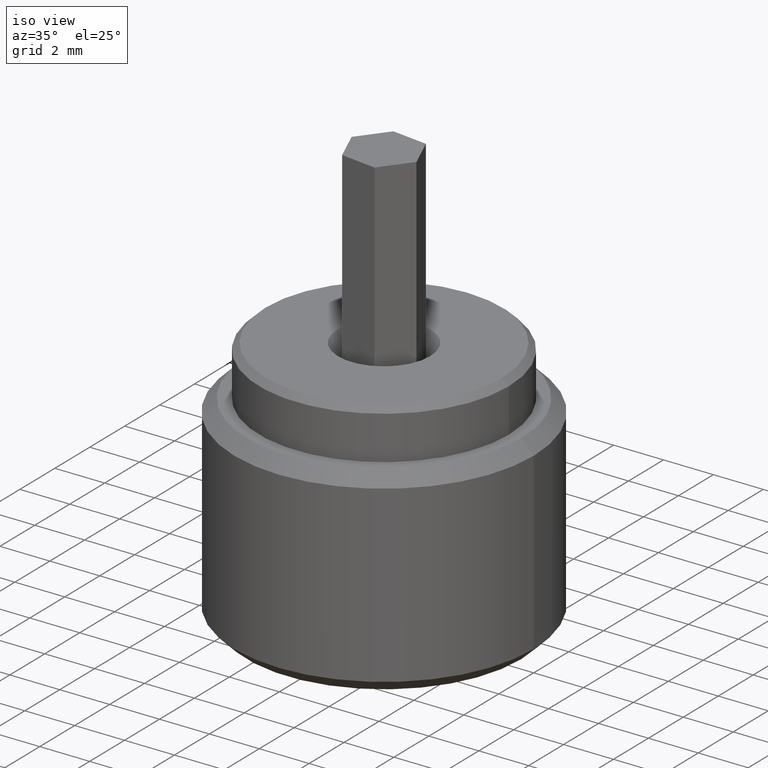
[diagram: clean part render]
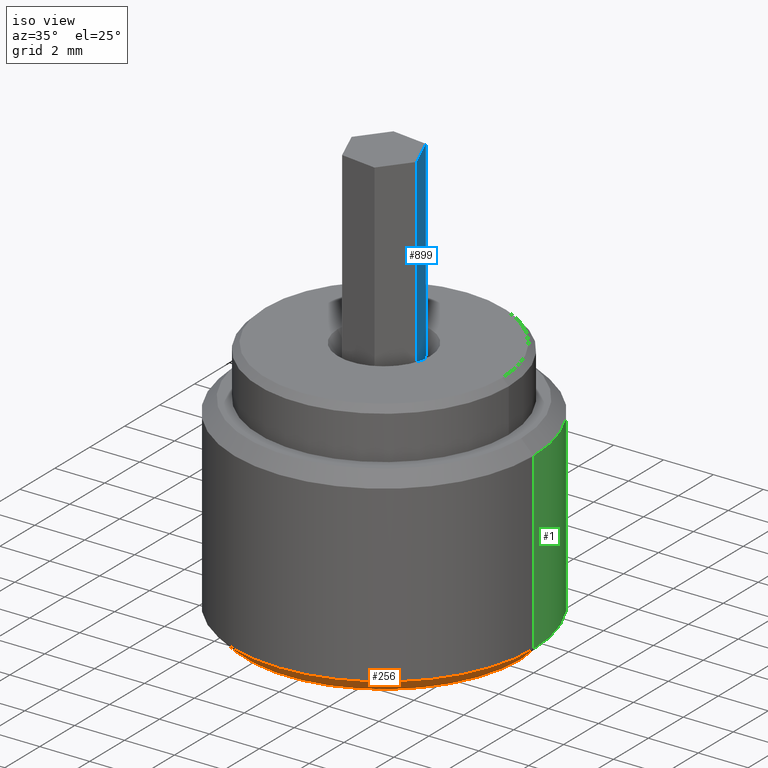
[diagram: same view with three faces highlighted in distinct colors, each labeled with its STEP entity id]
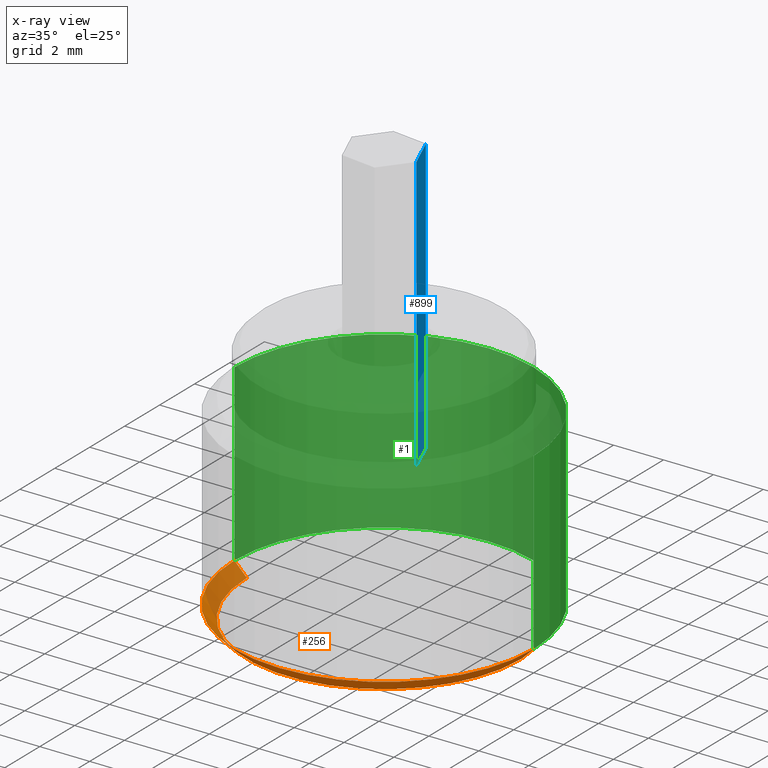
[diagram: x-ray of the same camera — body ghosted, the three highlighted faces saturated]
A machine part, iso view with three faces highlighted in distinct colors.
The next image is the same camera in x-ray (body ghosted, the three faces saturated) — at least one of them is partly hidden behind the body in this view.
Their STEP definitions:

[orange] entity #256 — the highlighted conical surface has half-angle 45 deg.
#25 = CARTESIAN_POINT ( 'NONE',  ( 6.000000000000000888, 0.000000000000000000, 0.4999999999999987232 ) ) ;
#35 = DIRECTION ( 'NONE',  ( 1.000000000000000000, 0.000000000000000000, 0.000000000000000000 ) ) ;
#53 = LINE ( 'NONE', #581, #396 ) ;
#56 = ORIENTED_EDGE ( 'NONE', *, *, #702, .T. ) ;
#70 = VERTEX_POINT ( 'NONE', #532 ) ;
#92 = VECTOR ( 'NONE', #631, 1000.000000000000000 ) ;
#176 = VERTEX_POINT ( 'NONE', #265 ) ;
#193 = CARTESIAN_POINT ( 'NONE',  ( 0.000000000000000000, 0.000000000000000000, 0.4999999999999987232 ) ) ;
#248 = CARTESIAN_POINT ( 'NONE',  ( 6.000000000000000888, 7.347880794884120722E-16, 0.4999999999999987232 ) ) ;
#256 = ADVANCED_FACE ( 'NONE', ( #944 ), #260, .T. ) ;
#260 = CONICAL_SURFACE ( 'NONE', #516, 6.000000000000000888, 0.7853981633974500554 ) ;
#265 = CARTESIAN_POINT ( 'NONE',  ( 5.500000000000000888, 0.000000000000000000, 0.000000000000000000 ) ) ;
#271 = EDGE_LOOP ( 'NONE', ( #777, #337, #56, #972 ) ) ;
#278 = CARTESIAN_POINT ( 'NONE',  ( -6.000000000000000888, 0.000000000000000000, 0.4999999999999987232 ) ) ;
#329 = EDGE_CURVE ( 'NONE', #842, #797, #940, .T. ) ;
#337 = ORIENTED_EDGE ( 'NONE', *, *, #757, .F. ) ;
#396 = VECTOR ( 'NONE', #880, 1000.000000000000000 ) ;
#432 = CIRCLE ( 'NONE', #925, 5.500000000000000888 ) ;
#476 = DIRECTION ( 'NONE',  ( 1.000000000000000000, 0.000000000000000000, 0.000000000000000000 ) ) ;
#485 = DIRECTION ( 'NONE',  ( -0.000000000000000000, -0.000000000000000000, -1.000000000000000000 ) ) ;
#516 = AXIS2_PLACEMENT_3D ( 'NONE', #193, #642, #476 ) ;
#532 = CARTESIAN_POINT ( 'NONE',  ( -5.500000000000000888, 7.041719095097281866E-16, 0.000000000000000000 ) ) ;
#558 = CARTESIAN_POINT ( 'NONE',  ( 0.000000000000000000, 0.000000000000000000, 0.4999999999999987232 ) ) ;
#581 = CARTESIAN_POINT ( 'NONE',  ( -6.000000000000000888, 7.347880794884120722E-16, 0.4999999999999987232 ) ) ;
#631 = DIRECTION ( 'NONE',  ( 0.7071067811865487940, 0.000000000000000000, 0.7071067811865463515 ) ) ;
#642 = DIRECTION ( 'NONE',  ( -0.000000000000000000, -0.000000000000000000, 1.000000000000000000 ) ) ;
#686 = LINE ( 'NONE', #25, #92 ) ;
#702 = EDGE_CURVE ( 'NONE', #176, #797, #686, .T. ) ;
#757 = EDGE_CURVE ( 'NONE', #176, #70, #432, .T. ) ;
#777 = ORIENTED_EDGE ( 'NONE', *, *, #890, .F. ) ;
#788 = DIRECTION ( 'NONE',  ( 1.000000000000000000, 0.000000000000000000, 0.000000000000000000 ) ) ;
#797 = VERTEX_POINT ( 'NONE', #248 ) ;
#842 = VERTEX_POINT ( 'NONE', #278 ) ;
#880 = DIRECTION ( 'NONE',  ( -0.7071067811865487940, 8.659560562354950115E-17, 0.7071067811865463515 ) ) ;
#888 = AXIS2_PLACEMENT_3D ( 'NONE', #558, #955, #35 ) ;
#890 = EDGE_CURVE ( 'NONE', #70, #842, #53, .T. ) ;
#925 = AXIS2_PLACEMENT_3D ( 'NONE', #932, #485, #788 ) ;
#932 = CARTESIAN_POINT ( 'NONE',  ( 0.000000000000000000, 0.000000000000000000, 0.000000000000000000 ) ) ;
#940 = CIRCLE ( 'NONE', #888, 6.000000000000000888 ) ;
#944 = FACE_OUTER_BOUND ( 'NONE', #271, .T. ) ;
#955 = DIRECTION ( 'NONE',  ( -0.000000000000000000, -0.000000000000000000, 1.000000000000000000 ) ) ;
#972 = ORIENTED_EDGE ( 'NONE', *, *, #329, .F. ) ;

[blue] entity #899 — the highlighted planar face has unit normal (-0.9237, -0.383, 0).
#10 = CARTESIAN_POINT ( 'NONE',  ( -1.250000000000000444, -0.7216878364870319418, 11.00000000000000000 ) ) ;
#28 = CARTESIAN_POINT ( 'NONE',  ( -1.250000000000000444, 0.7216878364870323859, 0.000000000000000000 ) ) ;
#49 = VECTOR ( 'NONE', #164, 1000.000000000000000 ) ;
#74 = VECTOR ( 'NONE', #185, 1000.000000000000000 ) ;
#125 = LINE ( 'NONE', #10, #578 ) ;
#164 = DIRECTION ( 'NONE',  ( 0.000000000000000000, -1.000000000000000000, 0.000000000000000000 ) ) ;
#173 = CARTESIAN_POINT ( 'NONE',  ( -1.250000000000000444, 0.7216878364870323859, 0.000000000000000000 ) ) ;
#184 = DIRECTION ( 'NONE',  ( -0.000000000000000000, 0.000000000000000000, -1.000000000000000000 ) ) ;
#185 = DIRECTION ( 'NONE',  ( 0.000000000000000000, -1.000000000000000000, 0.000000000000000000 ) ) ;
#251 = LINE ( 'NONE', #713, #74 ) ;
#275 = EDGE_CURVE ( 'NONE', #382, #939, #251, .T. ) ;
#276 = DIRECTION ( 'NONE',  ( -0.000000000000000000, -0.000000000000000000, -1.000000000000000000 ) ) ;
#282 = ORIENTED_EDGE ( 'NONE', *, *, #608, .T. ) ;
#356 = EDGE_CURVE ( 'NONE', #382, #609, #960, .T. ) ;
#382 = VERTEX_POINT ( 'NONE', #593 ) ;
#399 = EDGE_CURVE ( 'NONE', #939, #417, #125, .T. ) ;
#410 = ORIENTED_EDGE ( 'NONE', *, *, #356, .T. ) ;
#417 = VERTEX_POINT ( 'NONE', #891 ) ;
#424 = CARTESIAN_POINT ( 'NONE',  ( -1.250000000000000444, 0.7216878364870323859, 11.00000000000000000 ) ) ;
#498 = DIRECTION ( 'NONE',  ( -0.000000000000000000, -0.000000000000000000, -1.000000000000000000 ) ) ;
#502 = VECTOR ( 'NONE', #498, 1000.000000000000000 ) ;
#561 = CARTESIAN_POINT ( 'NONE',  ( -1.250000000000000444, 0.7216878364870323859, 11.00000000000000000 ) ) ;
#578 = VECTOR ( 'NONE', #276, 1000.000000000000000 ) ;
#593 = CARTESIAN_POINT ( 'NONE',  ( -1.250000000000000444, 0.7216878364870323859, 11.00000000000000000 ) ) ;
#606 = ORIENTED_EDGE ( 'NONE', *, *, #399, .F. ) ;
#608 = EDGE_CURVE ( 'NONE', #609, #417, #948, .T. ) ;
#609 = VERTEX_POINT ( 'NONE', #173 ) ;
#713 = CARTESIAN_POINT ( 'NONE',  ( -1.250000000000000444, 0.7216878364870323859, 11.00000000000000000 ) ) ;
#716 = DIRECTION ( 'NONE',  ( 1.000000000000000000, 0.000000000000000000, -0.000000000000000000 ) ) ;
#729 = EDGE_LOOP ( 'NONE', ( #282, #606, #740, #410 ) ) ;
#740 = ORIENTED_EDGE ( 'NONE', *, *, #275, .F. ) ;
#891 = CARTESIAN_POINT ( 'NONE',  ( -1.250000000000000444, -0.7216878364870319418, 0.000000000000000000 ) ) ;
#894 = FACE_OUTER_BOUND ( 'NONE', #729, .T. ) ;
#899 = ADVANCED_FACE ( 'NONE', ( #894 ), #974, .F. ) ;
#939 = VERTEX_POINT ( 'NONE', #980 ) ;
#948 = LINE ( 'NONE', #28, #49 ) ;
#960 = LINE ( 'NONE', #424, #502 ) ;
#963 = AXIS2_PLACEMENT_3D ( 'NONE', #561, #716, #184 ) ;
#974 = PLANE ( 'NONE',  #963 ) ;
#980 = CARTESIAN_POINT ( 'NONE',  ( -1.250000000000000444, -0.7216878364870319418, 11.00000000000000000 ) ) ;

[green] entity #1 — the highlighted cylindrical surface (partial cylindrical patch) has radius 6 mm, axis along (-0, -0, -1).
#1 = ADVANCED_FACE ( 'NONE', ( #515 ), #139, .T. ) ;
#8 = VERTEX_POINT ( 'NONE', #840 ) ;
#41 = ORIENTED_EDGE ( 'NONE', *, *, #566, .F. ) ;
#43 = VECTOR ( 'NONE', #779, 1000.000000000000000 ) ;
#67 = ORIENTED_EDGE ( 'NONE', *, *, #852, .T. ) ;
#114 = CARTESIAN_POINT ( 'NONE',  ( 6.000000000000000888, 7.347880794884120722E-16, 10.00000000000000000 ) ) ;
#118 = DIRECTION ( 'NONE',  ( -0.000000000000000000, -0.000000000000000000, 1.000000000000000000 ) ) ;
#139 = CYLINDRICAL_SURFACE ( 'NONE', #344, 6.000000000000000888 ) ;
#190 = DIRECTION ( 'NONE',  ( 1.000000000000000000, 0.000000000000000000, 0.000000000000000000 ) ) ;
#248 = CARTESIAN_POINT ( 'NONE',  ( 6.000000000000000888, 7.347880794884120722E-16, 0.4999999999999987232 ) ) ;
#255 = LINE ( 'NONE', #114, #43 ) ;
#278 = CARTESIAN_POINT ( 'NONE',  ( -6.000000000000000888, 0.000000000000000000, 0.4999999999999987232 ) ) ;
#309 = ORIENTED_EDGE ( 'NONE', *, *, #391, .T. ) ;
#316 = EDGE_CURVE ( 'NONE', #8, #797, #255, .T. ) ;
#328 = LINE ( 'NONE', #773, #610 ) ;
#344 = AXIS2_PLACEMENT_3D ( 'NONE', #853, #459, #682 ) ;
#357 = DIRECTION ( 'NONE',  ( 1.000000000000000000, 0.000000000000000000, 0.000000000000000000 ) ) ;
#391 = EDGE_CURVE ( 'NONE', #946, #8, #458, .T. ) ;
#458 = CIRCLE ( 'NONE', #684, 6.000000000000000888 ) ;
#459 = DIRECTION ( 'NONE',  ( -0.000000000000000000, -0.000000000000000000, -1.000000000000000000 ) ) ;
#515 = FACE_OUTER_BOUND ( 'NONE', #791, .T. ) ;
#521 = CIRCLE ( 'NONE', #859, 6.000000000000000888 ) ;
#566 = EDGE_CURVE ( 'NONE', #946, #842, #328, .T. ) ;
#577 = CARTESIAN_POINT ( 'NONE',  ( 0.000000000000000000, 0.000000000000000000, 7.500000000000000000 ) ) ;
#607 = CARTESIAN_POINT ( 'NONE',  ( -6.000000000000000888, 0.000000000000000000, 7.500000000000000000 ) ) ;
#610 = VECTOR ( 'NONE', #703, 1000.000000000000000 ) ;
#652 = CARTESIAN_POINT ( 'NONE',  ( 0.000000000000000000, 0.000000000000000000, 0.4999999999999987232 ) ) ;
#682 = DIRECTION ( 'NONE',  ( -1.000000000000000000, 0.000000000000000000, 0.000000000000000000 ) ) ;
#684 = AXIS2_PLACEMENT_3D ( 'NONE', #577, #983, #357 ) ;
#694 = ORIENTED_EDGE ( 'NONE', *, *, #316, .T. ) ;
#703 = DIRECTION ( 'NONE',  ( -0.000000000000000000, -0.000000000000000000, -1.000000000000000000 ) ) ;
#773 = CARTESIAN_POINT ( 'NONE',  ( -6.000000000000000888, 0.000000000000000000, 10.00000000000000000 ) ) ;
#779 = DIRECTION ( 'NONE',  ( -0.000000000000000000, -0.000000000000000000, -1.000000000000000000 ) ) ;
#791 = EDGE_LOOP ( 'NONE', ( #309, #694, #67, #41 ) ) ;
#797 = VERTEX_POINT ( 'NONE', #248 ) ;
#840 = CARTESIAN_POINT ( 'NONE',  ( 6.000000000000000888, 7.347880794884120722E-16, 7.500000000000000000 ) ) ;
#842 = VERTEX_POINT ( 'NONE', #278 ) ;
#852 = EDGE_CURVE ( 'NONE', #797, #842, #521, .T. ) ;
#853 = CARTESIAN_POINT ( 'NONE',  ( 0.000000000000000000, 0.000000000000000000, 10.00000000000000000 ) ) ;
#859 = AXIS2_PLACEMENT_3D ( 'NONE', #652, #118, #190 ) ;
#946 = VERTEX_POINT ( 'NONE', #607 ) ;
#983 = DIRECTION ( 'NONE',  ( -0.000000000000000000, -0.000000000000000000, -1.000000000000000000 ) ) ;